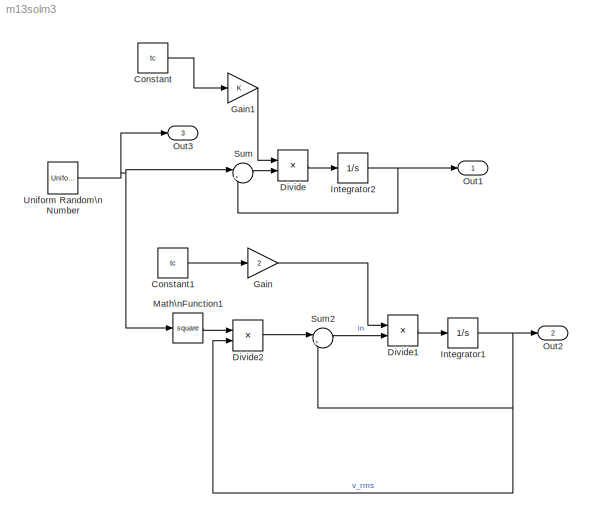
MODEL m13solm3
KIND model
BLOCK [Constant] Constant
  SID = 42
  Value = tc
BLOCK [Constant] Constant1
  SID = 44
  Value = tc
BLOCK [Product] Divide
  InputSameDT = off
  Inputs = /*
  OutDataTypeStr = Inherit: Inherit via internal rule
  Ports = [2, 1]
  RndMeth = Floor
  SID = 7
  SaturateOnIntegerOverflow = off
BLOCK [Product] Divide1
  InputSameDT = off
  Inputs = /*
  OutDataTypeStr = Inherit: Inherit via internal rule
  Ports = [2, 1]
  RndMeth = Floor
  SID = 11
  SaturateOnIntegerOverflow = off
BLOCK [Product] Divide2
  InputSameDT = off
  Inputs = */
  OutDataTypeStr = Inherit: Inherit via internal rule
  Ports = [2, 1]
  RndMeth = Floor
  SID = 34
  SaturateOnIntegerOverflow = off
BLOCK [Gain] Gain
  Gain = 2
  OutDataTypeStr = Inherit: Inherit via internal rule
  ParamDataTypeStr = Inherit: Inherit via internal rule
  SID = 15
  SaturateOnIntegerOverflow = off
BLOCK [Gain] Gain1
  OutDataTypeStr = Inherit: Inherit via internal rule
  ParamDataTypeStr = Inherit: Inherit via internal rule
  SID = 23
  SaturateOnIntegerOverflow = off
BLOCK [Integrator] Integrator1
  InitialCondition = 0.001
  Ports = [1, 1]
  SID = 12
BLOCK [Integrator] Integrator2
  InitialCondition = 0.0001
  Ports = [1, 1]
  SID = 22
BLOCK [Math] Math\nFunction1
  Operator = square
  Ports = [1, 1]
  SID = 19
BLOCK [Outport] Out1
  IconDisplay = Port number
  SID = 8
BLOCK [Outport] Out2
  IconDisplay = Port number
  Port = 2
  SID = 14
BLOCK [Outport] Out3
  IconDisplay = Port number
  Port = 3
  SID = 35
BLOCK [Sum] Sum
  IconShape = round
  InputSameDT = off
  Inputs = |+-
  OutDataTypeStr = Inherit: Inherit via internal rule
  Ports = [2, 1]
  SID = 3
  SaturateOnIntegerOverflow = off
BLOCK [Sum] Sum2
  IconShape = round
  InputSameDT = off
  Inputs = |+-
  OutDataTypeStr = Inherit: Inherit via internal rule
  Ports = [2, 1]
  SID = 16
  SaturateOnIntegerOverflow = off
BLOCK [UniformRandomNumber] Uniform Random\nNumber
  Maximum = nmax
  Minimum = nmin
  SID = 43
  SampleTime = 1
  Seed = seed
LINE Constant1:1 -> Gain:1
LINE Constant:1 -> Gain1:1
LINE Divide1:1 -> Integrator1:1
LINE Divide2:1 -> Sum2:1
LINE Divide:1 -> Integrator2:1
LINE Gain1:1 -> Divide:1
LINE Gain:1 -> Divide1:1
NET Integrator1:1 -> Divide2:2, Out2:1, Sum2:2
NET Integrator2:1 -> Out1:1, Sum:2
LINE Math\nFunction1:1 -> Divide2:1
LINE Sum2:1 -> Divide1:2
LINE Sum:1 -> Divide:2
NET Uniform Random\nNumber:1 -> Math\nFunction1:1, Out3:1, Sum:1
note: NET lines group one-source signal fan-out (src -> all destinations, sorted); 1:1 wires keep LINE
